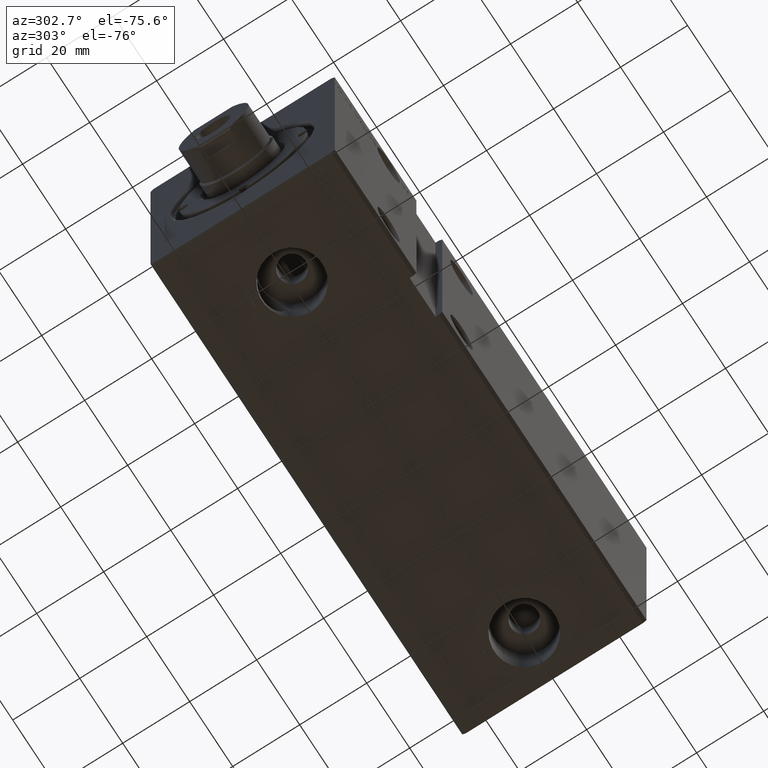
[diagram: clean part render]
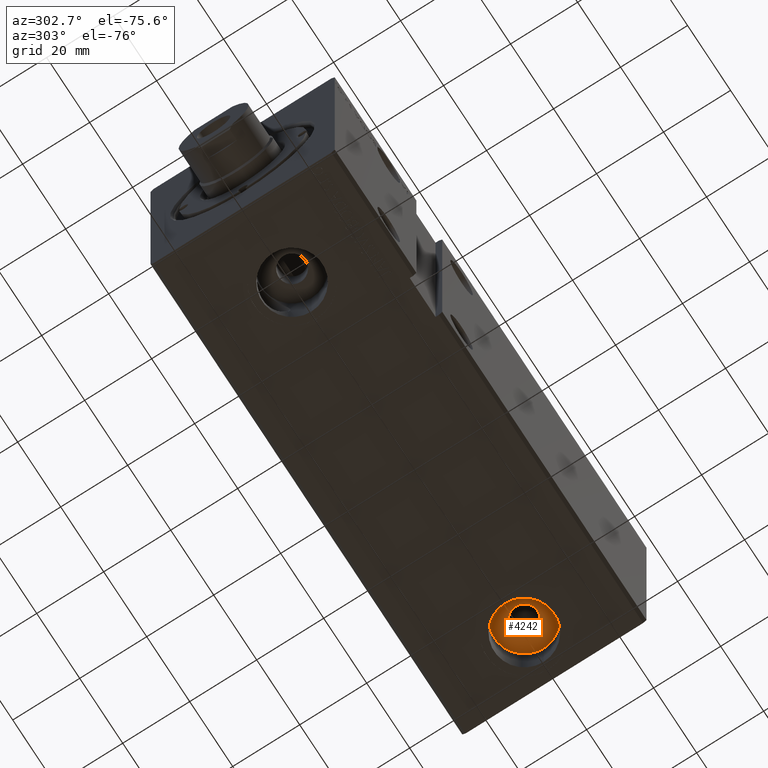
[diagram: same view with one face highlighted and labeled with its STEP entity id]
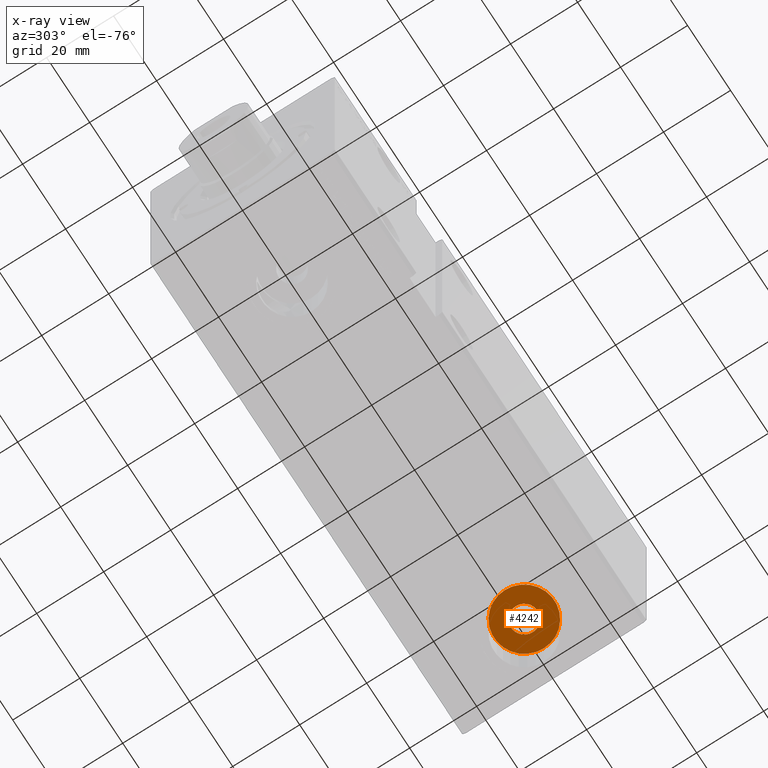
[diagram: x-ray of the same camera — body ghosted, the highlighted face saturated]
A machine part, auxiliary view. The second image highlights one B-rep face of the part: STEP entity #4242.
The next image is the same camera in x-ray: the body ghosted, the highlighted face saturated — about 0% of this face is hidden behind the body in this view.
In plain terms, the highlighted planar face has unit normal (0, 0, -1).
Its self-contained STEP definition (entity closure, byte-faithful):
#1162 = DIRECTION ( 'NONE',  ( -1.000000000000000000, 0.000000000000000000, -0.000000000000000000 ) ) ;
#1488 = DIRECTION ( 'NONE',  ( -1.000000000000000000, 0.000000000000000000, 0.000000000000000000 ) ) ;
#2228 = VERTEX_POINT ( 'NONE', #13919 ) ;
#2282 = CIRCLE ( 'NONE', #25037, 4.000000000000003553 ) ;
#2403 = ORIENTED_EDGE ( 'NONE', *, *, #25840, .T. ) ;
#3421 = DIRECTION ( 'NONE',  ( -1.000000000000000000, 0.000000000000000000, 0.000000000000000000 ) ) ;
#4198 = EDGE_LOOP ( 'NONE', ( #34456, #33851 ) ) ;
#4242 = ADVANCED_FACE ( 'NONE', ( #32094, #38410 ), #39011, .T. ) ;
#4260 = AXIS2_PLACEMENT_3D ( 'NONE', #26129, #38540, #8805 ) ;
#5516 = EDGE_CURVE ( 'NONE', #2228, #17783, #10799, .T. ) ;
#7136 = VERTEX_POINT ( 'NONE', #30563 ) ;
#7268 = DIRECTION ( 'NONE',  ( 0.000000000000000000, 0.000000000000000000, -1.000000000000000000 ) ) ;
#8805 = DIRECTION ( 'NONE',  ( -1.000000000000000000, 0.000000000000000000, 0.000000000000000000 ) ) ;
#10200 = CARTESIAN_POINT ( 'NONE',  ( 130.9999999999999432, -1.771764358548707728E-14, -23.79999999999998650 ) ) ;
#10600 = DIRECTION ( 'NONE',  ( -1.000000000000000000, 0.000000000000000000, 0.000000000000000000 ) ) ;
#10799 = CIRCLE ( 'NONE', #14063, 8.999999999999994671 ) ;
#11691 = EDGE_CURVE ( 'NONE', #7136, #21994, #37910, .T. ) ;
#13919 = CARTESIAN_POINT ( 'NONE',  ( 121.9999999999999574, -1.771764358548707728E-14, -23.79999999999998650 ) ) ;
#14063 = AXIS2_PLACEMENT_3D ( 'NONE', #34351, #21949, #3421 ) ;
#16852 = CARTESIAN_POINT ( 'NONE',  ( 134.9999999999999432, -1.722778486582813669E-14, -23.79999999999998650 ) ) ;
#17783 = VERTEX_POINT ( 'NONE', #18802 ) ;
#18802 = CARTESIAN_POINT ( 'NONE',  ( 139.9999999999999716, -1.661546146625446095E-14, -23.79999999999998650 ) ) ;
#21185 = CIRCLE ( 'NONE', #4260, 8.999999999999994671 ) ;
#21949 = DIRECTION ( 'NONE',  ( 0.000000000000000000, 0.000000000000000000, -1.000000000000000000 ) ) ;
#21994 = VERTEX_POINT ( 'NONE', #16852 ) ;
#23216 = ORIENTED_EDGE ( 'NONE', *, *, #5516, .T. ) ;
#24968 = EDGE_CURVE ( 'NONE', #21994, #7136, #2282, .T. ) ;
#25037 = AXIS2_PLACEMENT_3D ( 'NONE', #26124, #35083, #1488 ) ;
#25840 = EDGE_CURVE ( 'NONE', #17783, #2228, #21185, .T. ) ;
#26124 = CARTESIAN_POINT ( 'NONE',  ( 130.9999999999999432, -1.771764358548707728E-14, -23.79999999999998650 ) ) ;
#26129 = CARTESIAN_POINT ( 'NONE',  ( 130.9999999999999432, -1.771764358548707728E-14, -23.79999999999998650 ) ) ;
#29247 = CARTESIAN_POINT ( 'NONE',  ( 0.000000000000000000, 0.000000000000000000, -23.79999999999998650 ) ) ;
#30259 = AXIS2_PLACEMENT_3D ( 'NONE', #29247, #7268, #1162 ) ;
#30563 = CARTESIAN_POINT ( 'NONE',  ( 126.9999999999999432, -1.771764358548707728E-14, -23.79999999999998650 ) ) ;
#32094 = FACE_BOUND ( 'NONE', #4198, .T. ) ;
#32250 = EDGE_LOOP ( 'NONE', ( #23216, #2403 ) ) ;
#33851 = ORIENTED_EDGE ( 'NONE', *, *, #24968, .F. ) ;
#34351 = CARTESIAN_POINT ( 'NONE',  ( 130.9999999999999432, -1.771764358548707728E-14, -23.79999999999998650 ) ) ;
#34456 = ORIENTED_EDGE ( 'NONE', *, *, #11691, .F. ) ;
#35083 = DIRECTION ( 'NONE',  ( 0.000000000000000000, 0.000000000000000000, -1.000000000000000000 ) ) ;
#35424 = DIRECTION ( 'NONE',  ( 0.000000000000000000, 0.000000000000000000, -1.000000000000000000 ) ) ;
#35958 = AXIS2_PLACEMENT_3D ( 'NONE', #10200, #35424, #10600 ) ;
#37910 = CIRCLE ( 'NONE', #35958, 4.000000000000003553 ) ;
#38410 = FACE_OUTER_BOUND ( 'NONE', #32250, .T. ) ;
#38540 = DIRECTION ( 'NONE',  ( 0.000000000000000000, 0.000000000000000000, -1.000000000000000000 ) ) ;
#39011 = PLANE ( 'NONE',  #30259 ) ;